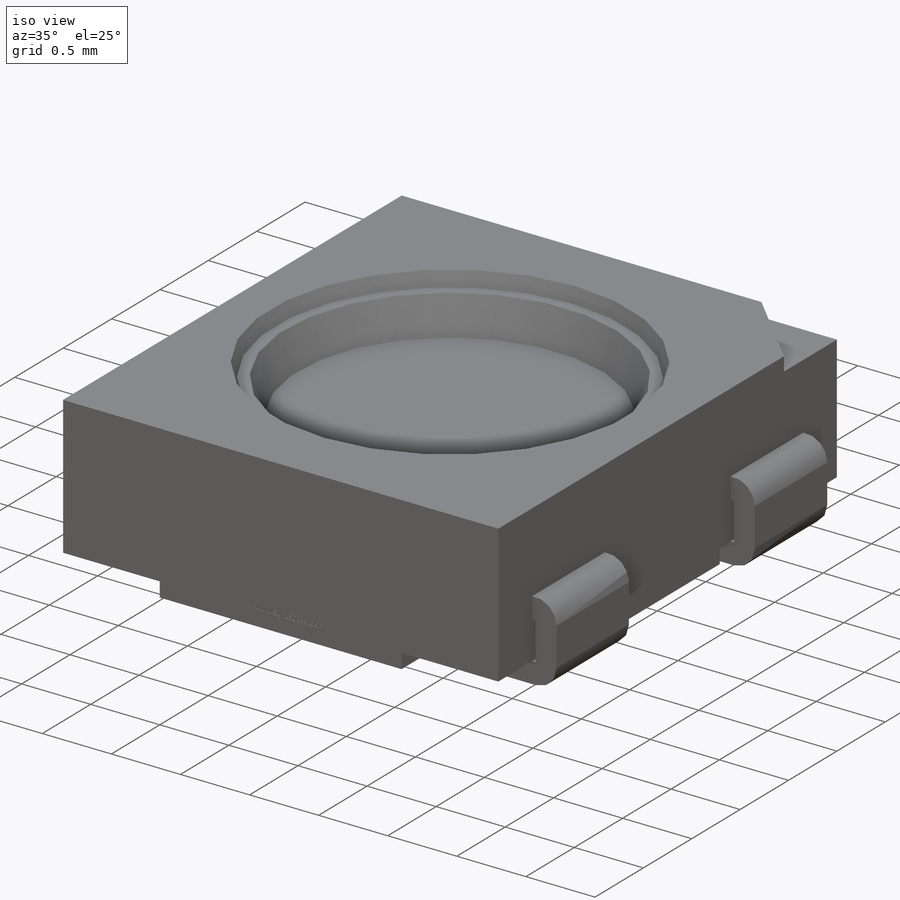
[diagram: iso view]
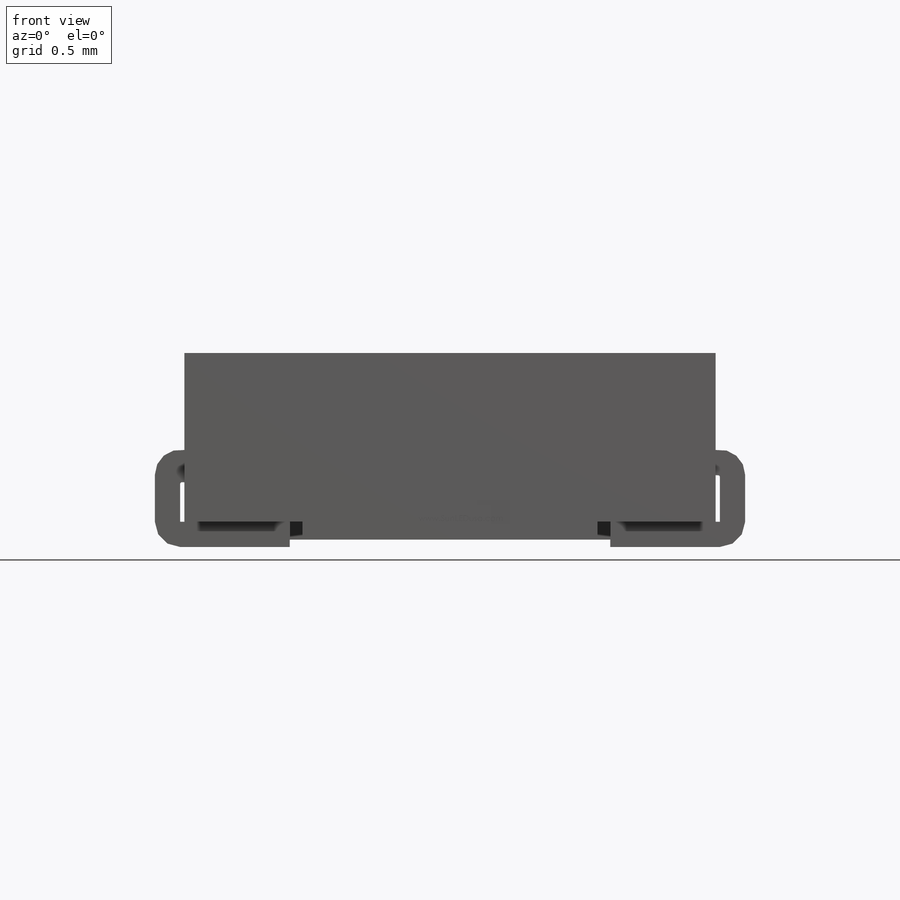
[diagram: front view]
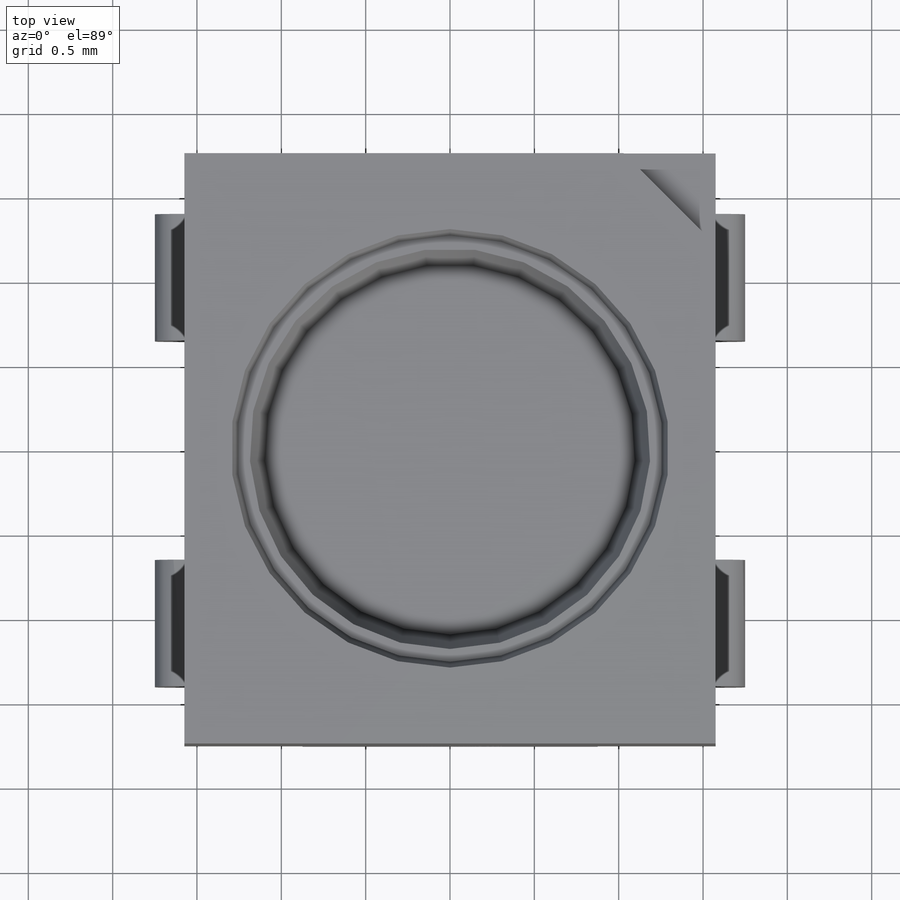
[diagram: top view]
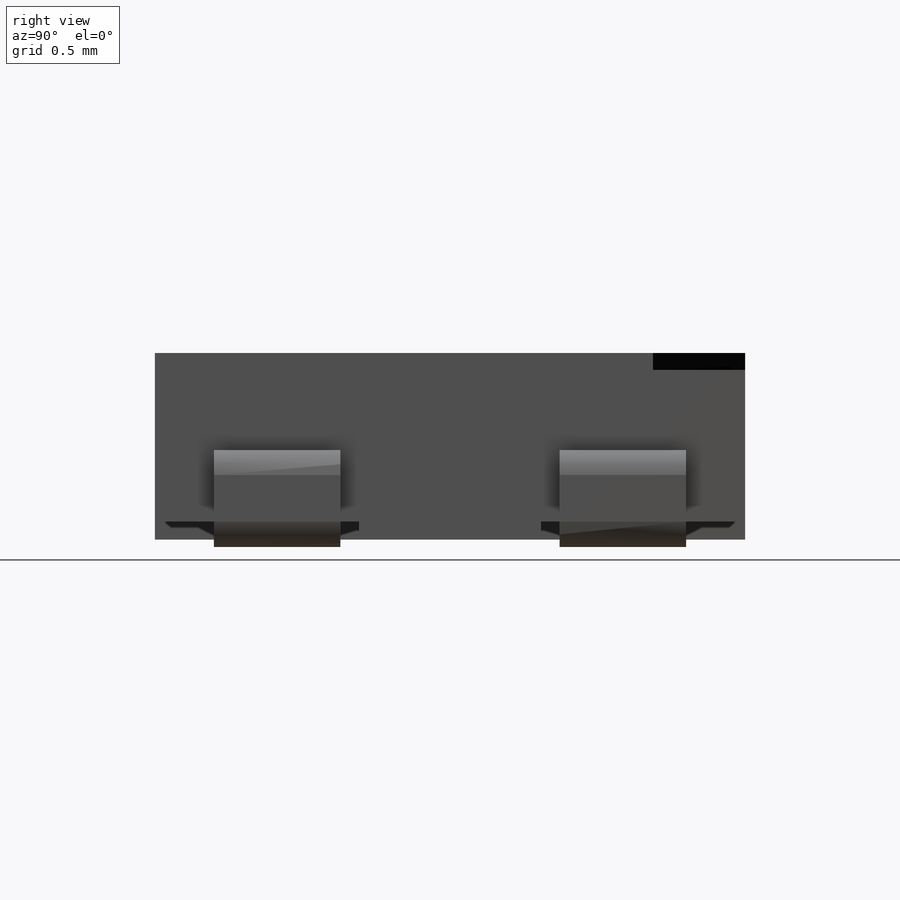
[diagram: right view]
SOLIDWORKS PART (.sldprt)
format: sldprt  version: not decoded by parser v0  size: 699,392 bytes
history: native  units: mm
features: sketch x8, extrude x4, cut_extrude x4, plane x3, material x1 (+11 scaffold rows collapsed)
feature tree (31):
  scaffold x11  (default folders/planes/origin — collapsed)
  material  "Material <not specified>"
  sketch  "Sketch1"  dims[c1.D9=0.15mm c1.D1=3.15mm c1.D2=~4.291667mm c2.D2=4.0deg c2.D3=0.9mm c2.D4=1.9mm c2.D5=0.36mm c2.D6=2.4mm c3.D5=0.36mm c4.D5=95.0deg c4.D6=~0.361375mm c5.D6=89.0deg c5.D7=1.75mm c5.D8=0.1mm c5.D5=1.1mm c6.D6=0.8mm c6.D5=1.1mm c7.D6=0.8mm c7.D10=0.1mm c7.D5=1.1mm c8.D6=0.8mm c8.D9=3.55mm c8.D5=1.75mm c9.D6=0.05mm c9.D7=0.151mm c10.D6=0.1mm c10.D2=1.15mm c10.D3=0.15mm c10.D10=0.15mm]
  extrude  "Extrude1"  Depth=3.5mm
  plane  "Plane2"  Offset=1mm
  sketch  "Sketch4"  dims[c1.D1=2.4mm c1.D2=2.6mm c1.D3=~1.64441mm c2.D3=45.0deg c2.D4=1.25mm c2.D1=~0.694682mm c3.D1=45.0deg]
  sketch  "Sketch4<5>"
  cut_extrude  "Cut-Extrude1"  Depth=0.1mm
  cut_extrude  "Cut-Extrude2"  Depth=0.1mm
  plane  "Plane3"  Offset=0.65mm
  sketch  "Sketch12"
  cut_extrude  "Cut-Extrude4"  Depth=0.25mm
  sketch  "Sketch8"  dims[c1.D2=0.15mm c1.D6=0.01mm c1.D3=0.15mm c1.D1=0.8mm c2.D3=1.9mm c2.D4=3.5mm c2.D5=0.9mm c2.D6=0.025mm c2.D2=0.15mm c3.D3=3.5mm c3.D4=1.15mm c3.D5=0.575mm c3.D6=0.15mm c3.D7=1.9mm]
  plane  "Plane4"  Offset=0.65mm
  sketch  "Sketch10"  dims[c1.D2=0.15mm c1.D3=0.15mm c1.D4=0.15mm c1.D7=0.005mm c1.D8=0.005mm c1.D1=0.8mm c2.D2=0.15mm c2.D3=1.1mm c2.D4=3.5mm c2.D5=0.8mm c2.D6=1.95mm]
  extrude  "Extrude2"  Depth=0.75mm
  extrude  "Extrude3"  Depth=0.75mm
  sketch  "Sketch11"  dims[D1=~2.862427mm]
  cut_extrude  "Cut-Extrude3"  Depth=0.01mm
  sketch  "Sketch13"  dims[D1=~1.324228mm]
  extrude  "Extrude4"  [1 undecoded]
decode coverage: 13 of 16 modeling features carry decoded parameters
note: ~ marks probable driven/reference dimensions
note: 1 parameter value undecoded
note: suppression state not decoded; provenance and decode notes live in map.json
